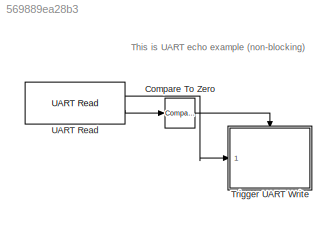
MODEL slx_569889ea28b3
KIND model
BLOCK [Reference] Compare To Zero  REF=simulink/Logic and Bit
Operations/Compare
To Zero
  OutDataTypeStr = boolean
  Ports = [1, 1]
  SourceBlock = simulink/Logic and Bit\nOperations/Compare\nTo Zero
  SourceType = Compare To Zero
  ZeroCross = on
  relop = ==
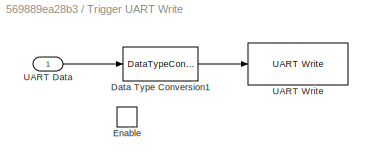
BLOCK [SubSystem] Trigger UART Write
  FunctionWithSeparateData = off
  MaskHideContents = off
  MinAlgLoopOccurrences = off
  Opaque = off
  Ports = [1, 0, 1]
  PropExecContextOutsideSubsystem = off
  RTWSystemCode = Auto
  RequestExecContextInheritance = off
BLOCK [DataTypeConversion] Trigger UART Write/Data Type Conversion1
  OutDataTypeStr = uint8
  RndMeth = Floor
  SaturateOnIntegerOverflow = off
BLOCK [EnablePort] Trigger UART Write/Enable
  Ports = []
BLOCK [Inport] Trigger UART Write/UART Data
  IconDisplay = Port number
BLOCK [Reference] Trigger UART Write/UART Write  REF=stellaris_lib/UART/UART Write
  Ports = [1]
  SourceBlock = stellaris_lib/UART/UART Write
  SourceType = UART Write
  nbFlag = on
BLOCK [Reference] UART Read  REF=stellaris_lib/UART/UART Read
  Ports = [0, 2]
  SourceBlock = stellaris_lib/UART/UART Read
  SourceType = UART Read
  nbFlag = on
ANNOTATION (root): This is UART echo example (non-blocking)
LINE Compare To Zero:1 -> Trigger UART Write:enable
LINE Trigger UART Write/Data Type Conversion1:1 -> Trigger UART Write/UART Write:1
LINE Trigger UART Write/UART Data:1 -> Trigger UART Write/Data Type Conversion1:1
LINE UART Read:1 -> Trigger UART Write:1
LINE UART Read:2 -> Compare To Zero:1
